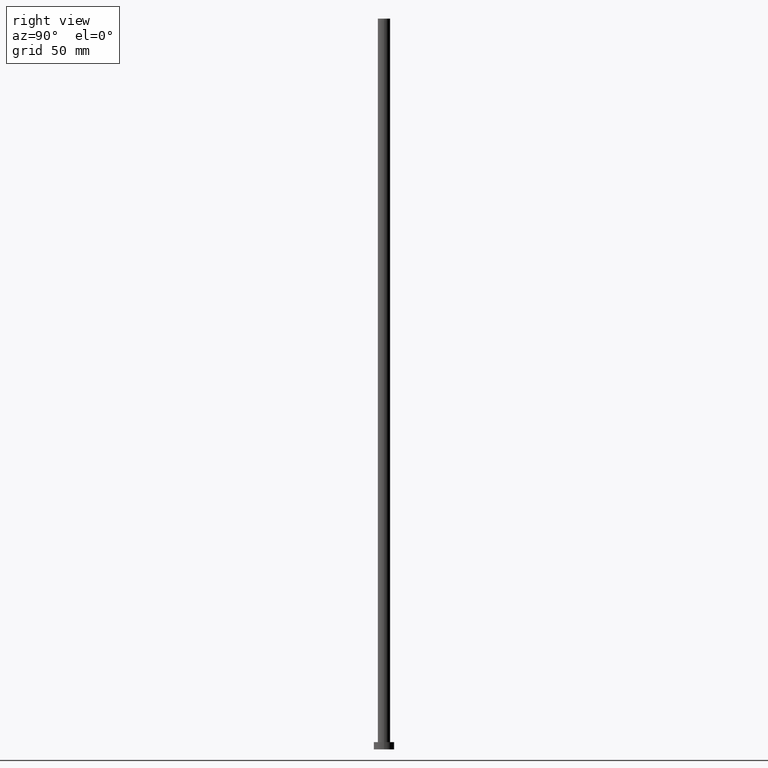
[diagram: clean part render]
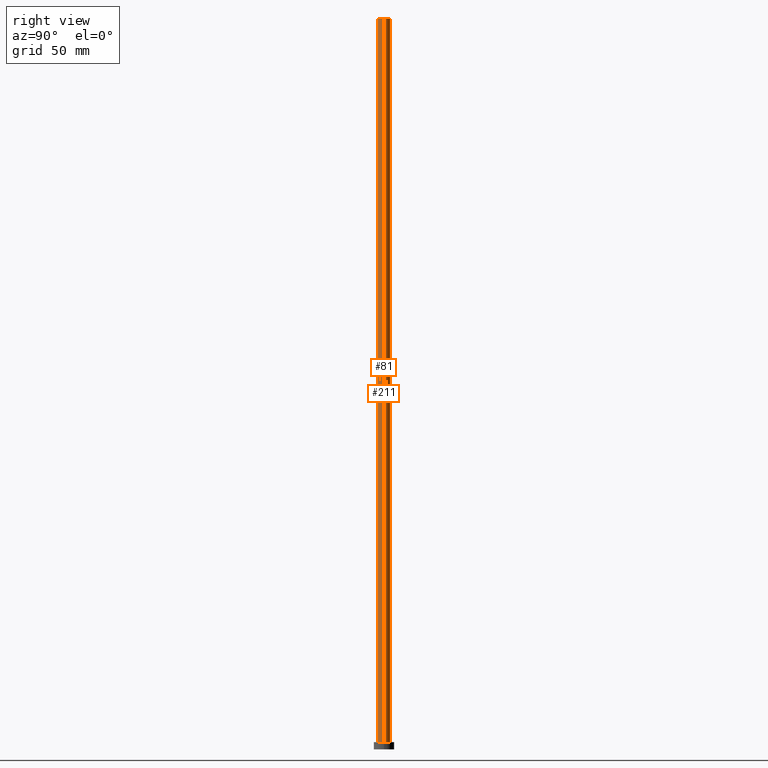
[diagram: same view with one multi-face feature highlighted, each face labeled with its STEP entity id]
A machine part, right view. The highlighted faces form ONE feature: a constant-radius fillet chain: 2 tangent blend faces with common blend radius 4.25 mm. The faces share edges in the B-rep.
Their STEP definitions:
[1] entity #211 (Cylinder):
#11 = VECTOR ( 'NONE', #164, 1000.000000000000000 ) ;
#24 = DIRECTION ( 'NONE',  ( 1.000000000000000000, 0.000000000000000000, 0.000000000000000000 ) ) ;
#46 = CARTESIAN_POINT ( 'NONE',  ( -4.250000000000000000, 0.000000000000000000, 500.0000000000000000 ) ) ;
#47 = AXIS2_PLACEMENT_3D ( 'NONE', #196, #127, #24 ) ;
#60 = ORIENTED_EDGE ( 'NONE', *, *, #228, .F. ) ;
#61 = EDGE_CURVE ( 'NONE', #156, #120, #109, .T. ) ;
#62 = VERTEX_POINT ( 'NONE', #180 ) ;
#65 = CARTESIAN_POINT ( 'NONE',  ( -4.250000000000000000, 0.000000000000000000, 500.0000000000000000 ) ) ;
#82 = CARTESIAN_POINT ( 'NONE',  ( 4.250000000000000000, 5.204748896376250699E-16, 500.0000000000000000 ) ) ;
#85 = EDGE_LOOP ( 'NONE', ( #212, #240, #137, #60 ) ) ;
#91 = CARTESIAN_POINT ( 'NONE',  ( 4.250000000000000000, 5.204748896376250699E-16, 5.000000000000000000 ) ) ;
#109 = LINE ( 'NONE', #145, #171 ) ;
#112 = CIRCLE ( 'NONE', #47, 4.250000000000000000 ) ;
#120 = VERTEX_POINT ( 'NONE', #91 ) ;
#127 = DIRECTION ( 'NONE',  ( 0.000000000000000000, 0.000000000000000000, 1.000000000000000000 ) ) ;
#132 = DIRECTION ( 'NONE',  ( -0.000000000000000000, -0.000000000000000000, -1.000000000000000000 ) ) ;
#134 = DIRECTION ( 'NONE',  ( 1.000000000000000000, 0.000000000000000000, 0.000000000000000000 ) ) ;
#136 = DIRECTION ( 'NONE',  ( -1.000000000000000000, 0.000000000000000000, 0.000000000000000000 ) ) ;
#137 = ORIENTED_EDGE ( 'NONE', *, *, #238, .T. ) ;
#138 = CYLINDRICAL_SURFACE ( 'NONE', #243, 4.250000000000000000 ) ;
#145 = CARTESIAN_POINT ( 'NONE',  ( 4.250000000000000000, 5.204748896376250699E-16, 500.0000000000000000 ) ) ;
#148 = DIRECTION ( 'NONE',  ( -0.000000000000000000, -0.000000000000000000, -1.000000000000000000 ) ) ;
#155 = CARTESIAN_POINT ( 'NONE',  ( 0.000000000000000000, 0.000000000000000000, 500.0000000000000000 ) ) ;
#156 = VERTEX_POINT ( 'NONE', #82 ) ;
#158 = LINE ( 'NONE', #46, #11 ) ;
#164 = DIRECTION ( 'NONE',  ( -0.000000000000000000, -0.000000000000000000, -1.000000000000000000 ) ) ;
#171 = VECTOR ( 'NONE', #148, 1000.000000000000000 ) ;
#180 = CARTESIAN_POINT ( 'NONE',  ( -4.250000000000000000, 0.000000000000000000, 5.000000000000000000 ) ) ;
#187 = EDGE_CURVE ( 'NONE', #156, #255, #201, .T. ) ;
#191 = FACE_OUTER_BOUND ( 'NONE', #85, .T. ) ;
#196 = CARTESIAN_POINT ( 'NONE',  ( 0.000000000000000000, 0.000000000000000000, 5.000000000000000000 ) ) ;
#201 = CIRCLE ( 'NONE', #225, 4.250000000000000000 ) ;
#211 = ADVANCED_FACE ( 'NONE', ( #191 ), #138, .T. ) ;
#212 = ORIENTED_EDGE ( 'NONE', *, *, #187, .F. ) ;
#215 = CARTESIAN_POINT ( 'NONE',  ( 0.000000000000000000, 0.000000000000000000, 500.0000000000000000 ) ) ;
#225 = AXIS2_PLACEMENT_3D ( 'NONE', #155, #241, #134 ) ;
#228 = EDGE_CURVE ( 'NONE', #255, #62, #158, .T. ) ;
#238 = EDGE_CURVE ( 'NONE', #120, #62, #112, .T. ) ;
#240 = ORIENTED_EDGE ( 'NONE', *, *, #61, .T. ) ;
#241 = DIRECTION ( 'NONE',  ( 0.000000000000000000, 0.000000000000000000, 1.000000000000000000 ) ) ;
#243 = AXIS2_PLACEMENT_3D ( 'NONE', #215, #132, #136 ) ;
#255 = VERTEX_POINT ( 'NONE', #65 ) ;
[2] entity #81 (Cylinder):
#10 = DIRECTION ( 'NONE',  ( -1.000000000000000000, 0.000000000000000000, 0.000000000000000000 ) ) ;
#11 = VECTOR ( 'NONE', #164, 1000.000000000000000 ) ;
#13 = CARTESIAN_POINT ( 'NONE',  ( 0.000000000000000000, 0.000000000000000000, 500.0000000000000000 ) ) ;
#34 = FACE_OUTER_BOUND ( 'NONE', #200, .T. ) ;
#42 = ORIENTED_EDGE ( 'NONE', *, *, #61, .F. ) ;
#44 = DIRECTION ( 'NONE',  ( 1.000000000000000000, 0.000000000000000000, 0.000000000000000000 ) ) ;
#46 = CARTESIAN_POINT ( 'NONE',  ( -4.250000000000000000, 0.000000000000000000, 500.0000000000000000 ) ) ;
#58 = ORIENTED_EDGE ( 'NONE', *, *, #228, .T. ) ;
#61 = EDGE_CURVE ( 'NONE', #156, #120, #109, .T. ) ;
#62 = VERTEX_POINT ( 'NONE', #180 ) ;
#65 = CARTESIAN_POINT ( 'NONE',  ( -4.250000000000000000, 0.000000000000000000, 500.0000000000000000 ) ) ;
#78 = CIRCLE ( 'NONE', #235, 4.250000000000000000 ) ;
#81 = ADVANCED_FACE ( 'NONE', ( #34 ), #149, .T. ) ;
#82 = CARTESIAN_POINT ( 'NONE',  ( 4.250000000000000000, 5.204748896376250699E-16, 500.0000000000000000 ) ) ;
#84 = EDGE_CURVE ( 'NONE', #62, #120, #78, .T. ) ;
#87 = AXIS2_PLACEMENT_3D ( 'NONE', #103, #162, #10 ) ;
#91 = CARTESIAN_POINT ( 'NONE',  ( 4.250000000000000000, 5.204748896376250699E-16, 5.000000000000000000 ) ) ;
#103 = CARTESIAN_POINT ( 'NONE',  ( 0.000000000000000000, 0.000000000000000000, 500.0000000000000000 ) ) ;
#109 = LINE ( 'NONE', #145, #171 ) ;
#120 = VERTEX_POINT ( 'NONE', #91 ) ;
#122 = ORIENTED_EDGE ( 'NONE', *, *, #84, .T. ) ;
#123 = CIRCLE ( 'NONE', #124, 4.250000000000000000 ) ;
#124 = AXIS2_PLACEMENT_3D ( 'NONE', #13, #142, #44 ) ;
#142 = DIRECTION ( 'NONE',  ( 0.000000000000000000, 0.000000000000000000, 1.000000000000000000 ) ) ;
#144 = ORIENTED_EDGE ( 'NONE', *, *, #221, .F. ) ;
#145 = CARTESIAN_POINT ( 'NONE',  ( 4.250000000000000000, 5.204748896376250699E-16, 500.0000000000000000 ) ) ;
#148 = DIRECTION ( 'NONE',  ( -0.000000000000000000, -0.000000000000000000, -1.000000000000000000 ) ) ;
#149 = CYLINDRICAL_SURFACE ( 'NONE', #87, 4.250000000000000000 ) ;
#156 = VERTEX_POINT ( 'NONE', #82 ) ;
#158 = LINE ( 'NONE', #46, #11 ) ;
#162 = DIRECTION ( 'NONE',  ( -0.000000000000000000, -0.000000000000000000, -1.000000000000000000 ) ) ;
#164 = DIRECTION ( 'NONE',  ( -0.000000000000000000, -0.000000000000000000, -1.000000000000000000 ) ) ;
#171 = VECTOR ( 'NONE', #148, 1000.000000000000000 ) ;
#178 = DIRECTION ( 'NONE',  ( 0.000000000000000000, 0.000000000000000000, 1.000000000000000000 ) ) ;
#180 = CARTESIAN_POINT ( 'NONE',  ( -4.250000000000000000, 0.000000000000000000, 5.000000000000000000 ) ) ;
#183 = DIRECTION ( 'NONE',  ( 1.000000000000000000, 0.000000000000000000, 0.000000000000000000 ) ) ;
#200 = EDGE_LOOP ( 'NONE', ( #42, #144, #58, #122 ) ) ;
#221 = EDGE_CURVE ( 'NONE', #255, #156, #123, .T. ) ;
#228 = EDGE_CURVE ( 'NONE', #255, #62, #158, .T. ) ;
#235 = AXIS2_PLACEMENT_3D ( 'NONE', #247, #178, #183 ) ;
#247 = CARTESIAN_POINT ( 'NONE',  ( 0.000000000000000000, 0.000000000000000000, 5.000000000000000000 ) ) ;
#255 = VERTEX_POINT ( 'NONE', #65 ) ;